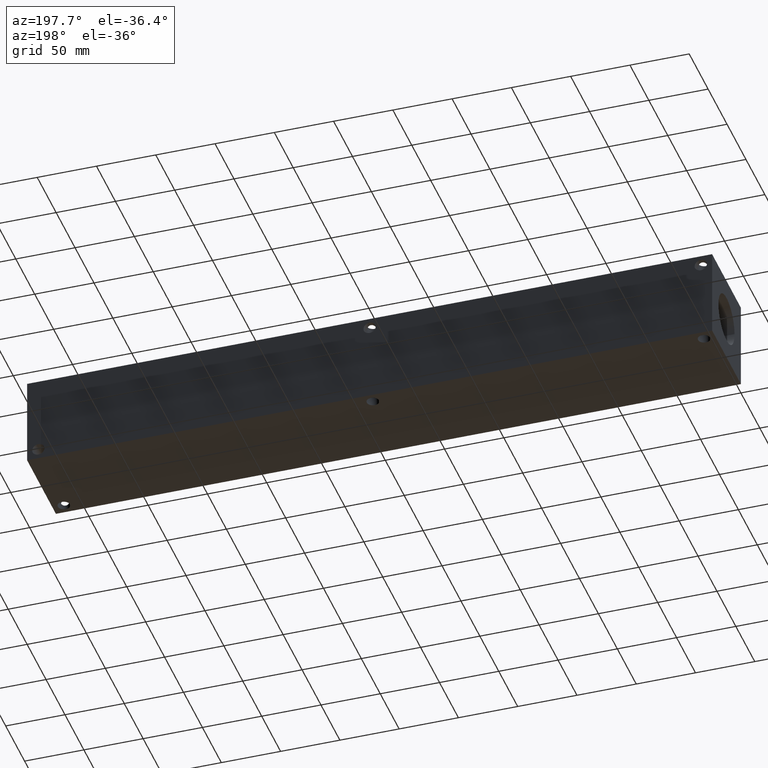
[diagram: clean part render]
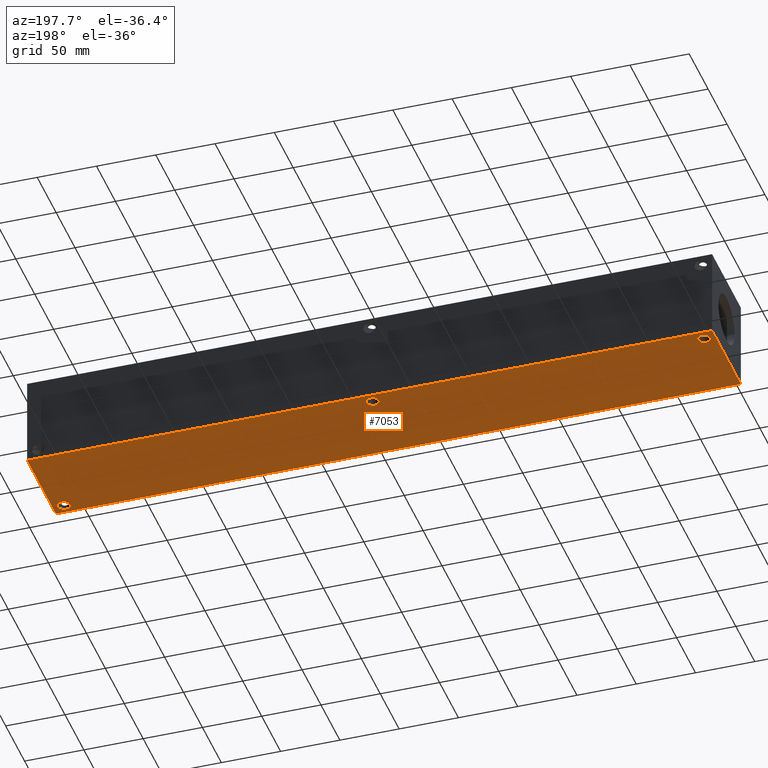
[diagram: same view with one face highlighted and labeled with its STEP entity id]
A machine part, auxiliary view. The second image highlights one B-rep face of the part: STEP entity #7053.
In plain terms, the highlighted planar face has unit normal (0, 0, 1).
Its self-contained STEP definition (entity closure, byte-faithful):
#89=CIRCLE('',#7321,5.1562);
#90=CIRCLE('',#7323,5.1562);
#91=CIRCLE('',#7325,5.1562);
#190=FACE_BOUND('',#1179,.T.);
#191=FACE_BOUND('',#1180,.T.);
#192=FACE_BOUND('',#1181,.T.);
#410=PLANE('',#7407);
#767=FACE_OUTER_BOUND('',#1178,.T.);
#1178=EDGE_LOOP('',(#6289,#6290,#6291,#6292));
#1179=EDGE_LOOP('',(#6293));
#1180=EDGE_LOOP('',(#6294));
#1181=EDGE_LOOP('',(#6295));
#1850=LINE('',#12068,#2526);
#1853=LINE('',#12073,#2529);
#1855=LINE('',#12077,#2531);
#1857=LINE('',#12080,#2533);
#2526=VECTOR('',#8748,10.);
#2529=VECTOR('',#8753,10.);
#2531=VECTOR('',#8757,10.);
#2533=VECTOR('',#8761,10.);
#3333=VERTEX_POINT('',#11902);
#3334=VERTEX_POINT('',#11906);
#3335=VERTEX_POINT('',#11910);
#3388=VERTEX_POINT('',#12066);
#3389=VERTEX_POINT('',#12067);
#3390=VERTEX_POINT('',#12072);
#3391=VERTEX_POINT('',#12076);
#4279=EDGE_CURVE('',#3333,#3333,#89,.T.);
#4281=EDGE_CURVE('',#3334,#3334,#90,.T.);
#4283=EDGE_CURVE('',#3335,#3335,#91,.T.);
#4352=EDGE_CURVE('',#3388,#3389,#1850,.T.);
#4355=EDGE_CURVE('',#3390,#3388,#1853,.T.);
#4357=EDGE_CURVE('',#3391,#3390,#1855,.T.);
#4359=EDGE_CURVE('',#3389,#3391,#1857,.T.);
#6289=ORIENTED_EDGE('',*,*,#4359,.F.);
#6290=ORIENTED_EDGE('',*,*,#4352,.F.);
#6291=ORIENTED_EDGE('',*,*,#4355,.F.);
#6292=ORIENTED_EDGE('',*,*,#4357,.F.);
#6293=ORIENTED_EDGE('',*,*,#4279,.T.);
#6294=ORIENTED_EDGE('',*,*,#4281,.T.);
#6295=ORIENTED_EDGE('',*,*,#4283,.T.);
#7053=ADVANCED_FACE('',(#767,#190,#191,#192),#410,.F.);
#7321=AXIS2_PLACEMENT_3D('',#11904,#8558,#8559);
#7323=AXIS2_PLACEMENT_3D('',#11908,#8563,#8564);
#7325=AXIS2_PLACEMENT_3D('',#11912,#8568,#8569);
#7407=AXIS2_PLACEMENT_3D('',#12082,#8764,#8765);
#8558=DIRECTION('center_axis',(0.,0.,1.));
#8559=DIRECTION('ref_axis',(1.,0.,0.));
#8563=DIRECTION('center_axis',(0.,0.,1.));
#8564=DIRECTION('ref_axis',(1.,0.,0.));
#8568=DIRECTION('center_axis',(0.,0.,1.));
#8569=DIRECTION('ref_axis',(1.,0.,0.));
#8748=DIRECTION('',(0.,-1.,0.));
#8753=DIRECTION('',(-1.,0.,0.));
#8757=DIRECTION('',(0.,1.,0.));
#8761=DIRECTION('',(1.,0.,0.));
#8764=DIRECTION('center_axis',(0.,0.,1.));
#8765=DIRECTION('ref_axis',(1.,0.,0.));
#11902=CARTESIAN_POINT('',(563.1688,8.7376,0.));
#11904=CARTESIAN_POINT('Origin',(568.325,8.7376,0.));
#11906=CARTESIAN_POINT('',(4.3688,67.4624,0.));
#11908=CARTESIAN_POINT('Origin',(9.525,67.4624,0.));
#11910=CARTESIAN_POINT('',(283.7688,67.4624,0.));
#11912=CARTESIAN_POINT('Origin',(288.925,67.4624,0.));
#12066=CARTESIAN_POINT('',(0.,76.2,0.));
#12067=CARTESIAN_POINT('',(0.,0.,0.));
#12068=CARTESIAN_POINT('',(0.,76.2,0.));
#12072=CARTESIAN_POINT('',(577.85,76.2,0.));
#12073=CARTESIAN_POINT('',(577.85,76.2,0.));
#12076=CARTESIAN_POINT('',(577.85,0.,0.));
#12077=CARTESIAN_POINT('',(577.85,0.,0.));
#12080=CARTESIAN_POINT('',(0.,0.,0.));
#12082=CARTESIAN_POINT('Origin',(288.925,38.1,0.));